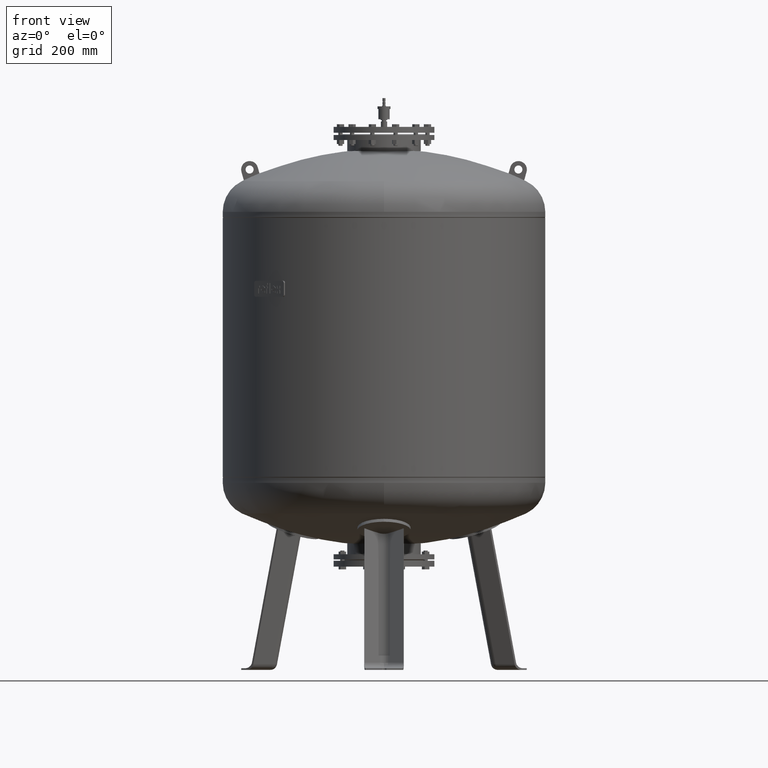
[diagram: clean part render]
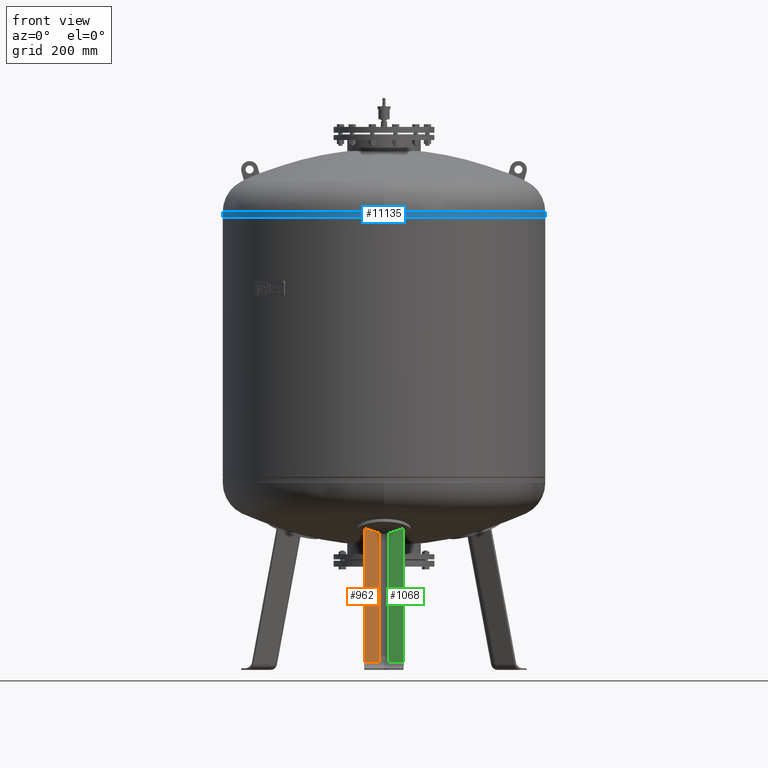
[diagram: same view with three faces highlighted in distinct colors, each labeled with its STEP entity id]
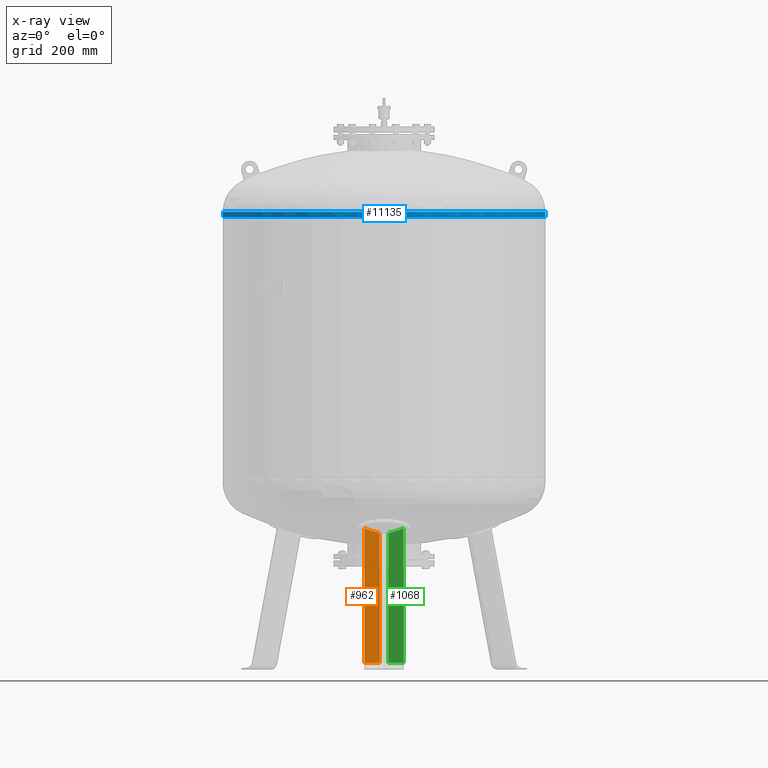
[diagram: x-ray of the same camera — body ghosted, the three highlighted faces saturated]
A machine part, front view with three faces highlighted in distinct colors.
The next image is the same camera in x-ray (body ghosted, the three faces saturated) — at least one of them is partly hidden behind the body in this view.
Their STEP definitions:

[orange] entity #962 — the highlighted planar face has unit normal (0.6455, -0.7471, 0.1588).
#213=CARTESIAN_POINT('',(-16.136450826554505,-476.124712592942840,27.029948423057292));
#214=VERTEX_POINT('',#213);
#546=CARTESIAN_POINT('',(-72.837866169855019,-525.111649658243320,27.029948423057292));
#547=VERTEX_POINT('',#546);
#548=CARTESIAN_POINT('',(-16.136450826554505,-476.124712592942840,27.029948423057292));
#549=DIRECTION('',(-0.756707249513242,-0.653753882232530,0.0));
#550=VECTOR('',#549,74.931772333057651);
#551=LINE('',#548,#550);
#552=EDGE_CURVE('',#214,#547,#551,.T.);
#833=CARTESIAN_POINT('',(-72.837866169854905,-418.875260683767750,526.832862714638170));
#834=VERTEX_POINT('',#833);
#842=CARTESIAN_POINT('',(-16.136450826554402,-373.822192772864470,508.325463444113210));
#843=VERTEX_POINT('',#842);
#844=CARTESIAN_POINT('',(45.036832094930027,-115.262731376360140,1476.110567297756700));
#845=DIRECTION('',(-0.645458033062181,0.747104967402683,-0.158802063077709));
#846=DIRECTION('',(5.092368E-017,0.207911690817760,0.978147600733806));
#847=AXIS2_PLACEMENT_3D('',#844,#845,#846);
#848=CIRCLE('',#847,1003.595123972834800);
#849=EDGE_CURVE('',#843,#834,#848,.T.);
#941=CARTESIAN_POINT('',(1.530690E-014,-472.504855353818410,-21.527282742766886));
#942=DIRECTION('',(0.645458033062181,-0.747104967402683,0.158802063077708));
#943=DIRECTION('',(2.013321E-016,0.207911690817760,0.978147600733806));
#944=AXIS2_PLACEMENT_3D('',#941,#942,#943);
#945=PLANE('',#944);
#946=ORIENTED_EDGE('',*,*,#849,.T.);
#947=CARTESIAN_POINT('',(-72.837866169855019,-525.111649658243320,27.029948423057292));
#948=DIRECTION('',(2.224927E-016,0.207911690817760,0.978147600733805));
#949=VECTOR('',#948,510.968808712130110);
#950=LINE('',#947,#949);
#951=EDGE_CURVE('',#547,#834,#950,.T.);
#952=ORIENTED_EDGE('',*,*,#951,.F.);
#953=ORIENTED_EDGE('',*,*,#552,.F.);
#954=CARTESIAN_POINT('',(-16.136450826554402,-373.822192772864470,508.325463444113210));
#955=DIRECTION('',(-2.093875E-016,-0.207911690817760,-0.978147600733806));
#956=VECTOR('',#955,492.047943132496980);
#957=LINE('',#954,#956);
#958=EDGE_CURVE('',#843,#214,#957,.T.);
#959=ORIENTED_EDGE('',*,*,#958,.F.);
#960=EDGE_LOOP('',(#946,#952,#953,#959));
#961=FACE_OUTER_BOUND('',#960,.T.);
#962=ADVANCED_FACE('',(#961),#945,.T.);

[blue] entity #11135 — the highlighted cylindrical surface (partial cylindrical patch) has radius 600 mm, axis along (0, -0, -1).
#10336=CARTESIAN_POINT('',(600.000000000000110,-4.684274E-014,1685.0));
#10337=VERTEX_POINT('',#10336);
#10338=CARTESIAN_POINT('',(600.0,-4.336858E-014,1703.912457433727700));
#10339=VERTEX_POINT('',#10338);
#10340=CARTESIAN_POINT('',(600.000000000000110,-4.684274E-014,1685.0));
#10341=DIRECTION('',(0.0,0.0,1.0));
#10342=VECTOR('',#10341,18.912457433727695);
#10343=LINE('',#10340,#10342);
#10344=EDGE_CURVE('',#10337,#10339,#10343,.T.);
#10346=CARTESIAN_POINT('',(-599.999999999999890,2.663364E-014,1685.0));
#10347=VERTEX_POINT('',#10346);
#10355=CARTESIAN_POINT('',(-599.999999999999890,3.010780E-014,1703.912457433727700));
#10356=VERTEX_POINT('',#10355);
#10357=CARTESIAN_POINT('',(-599.999999999999890,2.663364E-014,1685.0));
#10358=DIRECTION('',(0.0,0.0,1.0));
#10359=VECTOR('',#10358,18.912457433727695);
#10360=LINE('',#10357,#10359);
#10361=EDGE_CURVE('',#10347,#10356,#10360,.T.);
#10387=CARTESIAN_POINT('',(4.214189E-014,-600.0,1703.912457433727700));
#10388=VERTEX_POINT('',#10387);
#10398=CARTESIAN_POINT('',(6.604942E-015,-4.336858E-014,1703.912457433727700));
#10399=DIRECTION('',(0.0,0.0,-1.0));
#10400=DIRECTION('',(1.0,0.0,0.0));
#10401=AXIS2_PLACEMENT_3D('',#10398,#10399,#10400);
#10402=CIRCLE('',#10401,600.0);
#10403=EDGE_CURVE('',#10339,#10388,#10402,.T.);
#11107=CARTESIAN_POINT('',(6.604942E-015,-4.336858E-014,1703.912457433727700));
#11108=DIRECTION('',(0.0,0.0,-1.0));
#11109=DIRECTION('',(1.0,0.0,0.0));
#11110=AXIS2_PLACEMENT_3D('',#11107,#11108,#11109);
#11111=CIRCLE('',#11110,600.0);
#11112=EDGE_CURVE('',#10388,#10356,#11111,.T.);
#11117=CARTESIAN_POINT('',(6.869496E-015,-4.510566E-014,1694.456228716863700));
#11118=DIRECTION('',(2.797667E-017,-1.836970E-016,-1.0));
#11119=DIRECTION('',(1.0,0.0,0.0));
#11120=AXIS2_PLACEMENT_3D('',#11117,#11118,#11119);
#11121=CYLINDRICAL_SURFACE('',#11120,599.999999999999890);
#11122=ORIENTED_EDGE('',*,*,#10344,.T.);
#11123=ORIENTED_EDGE('',*,*,#10403,.T.);
#11124=ORIENTED_EDGE('',*,*,#11112,.T.);
#11125=ORIENTED_EDGE('',*,*,#10361,.F.);
#11126=CARTESIAN_POINT('',(7.134050E-015,-4.684274E-014,1685.0));
#11127=DIRECTION('',(0.0,0.0,-1.0));
#11128=DIRECTION('',(1.0,0.0,0.0));
#11129=AXIS2_PLACEMENT_3D('',#11126,#11127,#11128);
#11130=CIRCLE('',#11129,600.0);
#11131=EDGE_CURVE('',#10337,#10347,#11130,.T.);
#11132=ORIENTED_EDGE('',*,*,#11131,.F.);
#11133=EDGE_LOOP('',(#11122,#11123,#11124,#11125,#11132));
#11134=FACE_OUTER_BOUND('',#11133,.T.);
#11135=ADVANCED_FACE('',(#11134),#11121,.T.);

[green] entity #1068 — the highlighted planar face has unit normal (-0.6455, -0.7471, 0.1588).
#512=CARTESIAN_POINT('',(16.136450826554576,-476.124712592942840,27.029948423057284));
#513=VERTEX_POINT('',#512);
#522=CARTESIAN_POINT('',(72.837866169855033,-525.111649658243320,27.029948423057281));
#523=VERTEX_POINT('',#522);
#531=CARTESIAN_POINT('',(72.837866169855033,-525.111649658243320,27.029948423057281));
#532=DIRECTION('',(-0.756707249513242,0.653753882232530,4.741265E-017));
#533=VECTOR('',#532,74.931772333057609);
#534=LINE('',#531,#533);
#535=EDGE_CURVE('',#523,#513,#534,.T.);
#851=CARTESIAN_POINT('',(16.136450826554661,-373.823303045940410,508.320240019970470));
#852=VERTEX_POINT('',#851);
#882=CARTESIAN_POINT('',(72.837866169855147,-418.880316414739580,526.809077370483350));
#883=VERTEX_POINT('',#882);
#884=CARTESIAN_POINT('',(-44.843693232683513,-115.422379876540900,1476.144501634031000));
#885=DIRECTION('',(0.645458033062182,0.747104967402682,-0.158802063077709));
#886=DIRECTION('',(5.092368E-017,0.207911690817760,0.978147600733805));
#887=AXIS2_PLACEMENT_3D('',#884,#885,#886);
#888=CIRCLE('',#887,1003.580298946269700);
#889=EDGE_CURVE('',#883,#852,#888,.T.);
#1043=CARTESIAN_POINT('',(16.136450826554576,-476.124712592942840,27.029948423057284));
#1044=DIRECTION('',(1.732881E-016,0.207911690817760,0.978147600733806));
#1045=VECTOR('',#1044,492.042603013951630);
#1046=LINE('',#1043,#1045);
#1047=EDGE_CURVE('',#513,#852,#1046,.T.);
#1052=CARTESIAN_POINT('',(72.837866169855033,-535.432807759067370,-21.527282742766886));
#1053=DIRECTION('',(-0.645458033062182,-0.747104967402682,0.158802063077709));
#1054=DIRECTION('',(1.475869E-016,0.207911690817760,0.978147600733806));
#1055=AXIS2_PLACEMENT_3D('',#1052,#1053,#1054);
#1056=PLANE('',#1055);
#1057=ORIENTED_EDGE('',*,*,#889,.T.);
#1058=ORIENTED_EDGE('',*,*,#1047,.F.);
#1059=ORIENTED_EDGE('',*,*,#535,.F.);
#1060=CARTESIAN_POINT('',(72.837866169855033,-525.111649658243320,27.029948423057281));
#1061=DIRECTION('',(2.225033E-016,0.207911690817760,0.978147600733806));
#1062=VECTOR('',#1061,510.944491989237750);
#1063=LINE('',#1060,#1062);
#1064=EDGE_CURVE('',#523,#883,#1063,.T.);
#1065=ORIENTED_EDGE('',*,*,#1064,.T.);
#1066=EDGE_LOOP('',(#1057,#1058,#1059,#1065));
#1067=FACE_OUTER_BOUND('',#1066,.T.);
#1068=ADVANCED_FACE('',(#1067),#1056,.T.);